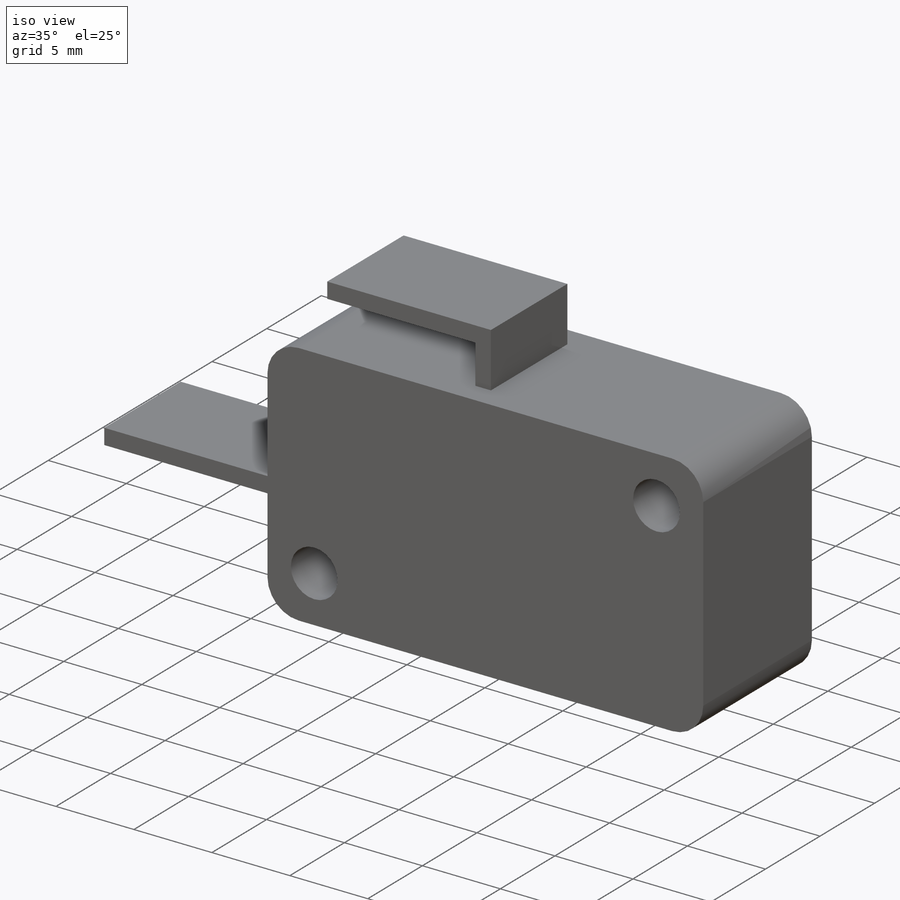
[diagram: iso view]
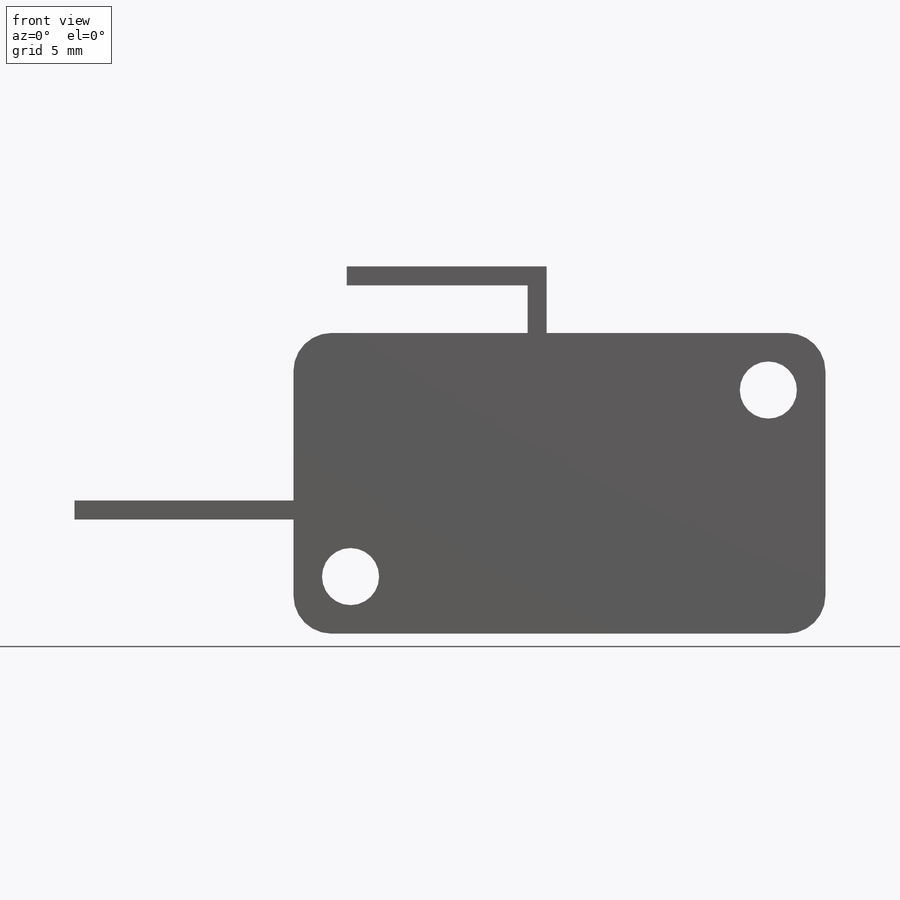
[diagram: front view]
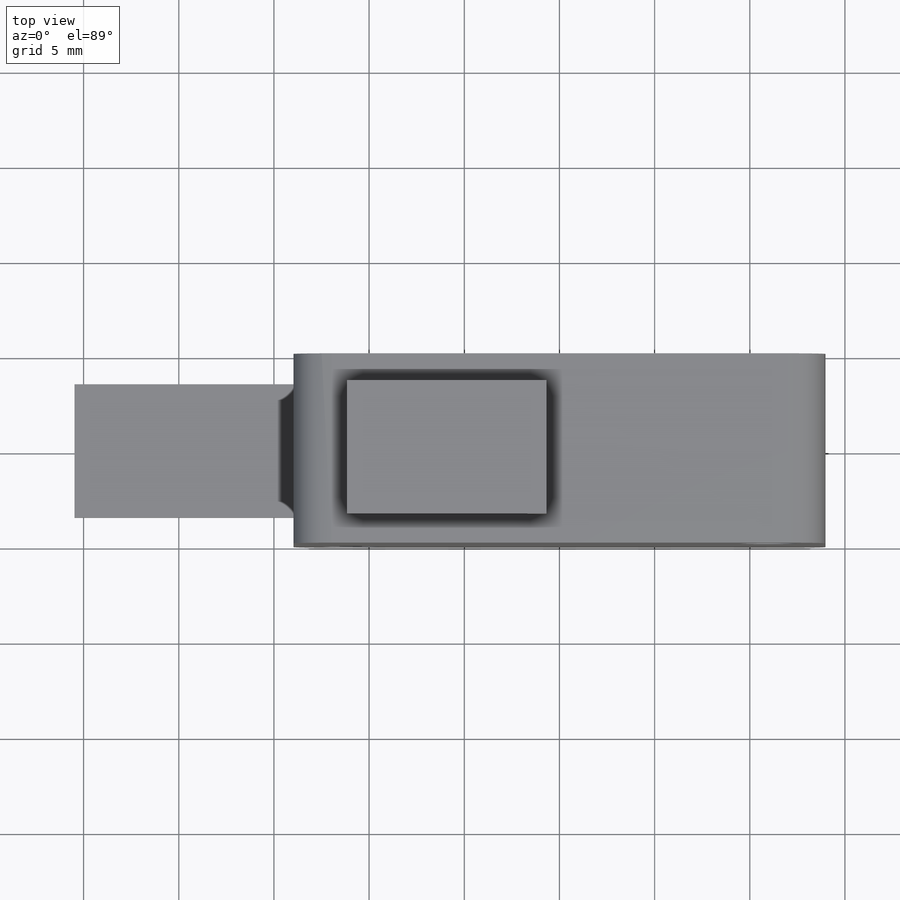
[diagram: top view]
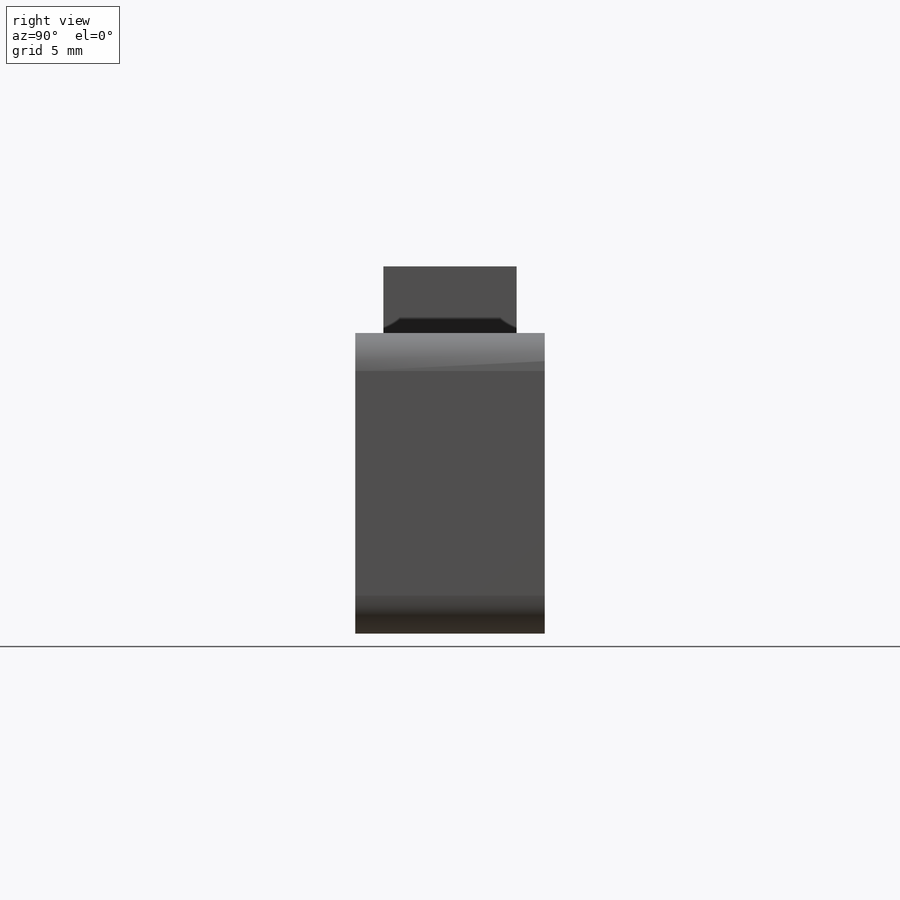
[diagram: right view]
SOLIDWORKS PART (.sldprt)
format: sldprt  version: not decoded by parser v0  size: 230,400 bytes
history: native  units: mm
features: sketch x8, extrude x4, cut_extrude x4, material x1, fillet x1 (+14 scaffold rows collapsed)
feature tree (32):
  scaffold x14  (default folders/planes/origin — collapsed)
  material  "Material <not specified>"
  sketch  "Sketch1"  dims[D1=27.95mm D2=15.8mm]
  extrude  "Extrude1"  Depth=9.95mm
  sketch  "Sketch2"  dims[D1=3.0mm D3=3.0mm D2=3.0mm D4=3.0mm D5=3.0mm D6=3.0mm]
  cut_extrude  "Extrude2"  [1 undecoded]
  fillet  "Fillet1"  Radius=2mm
  sketch  "Sketch3"  dims[D1=7.0mm D2=1.0mm D3=6.0mm D4=1.5mm]
  extrude  "Extrude3"  Depth=11.5mm
  sketch  "Sketch4"  dims[D1=1.0mm D2=7.0mm D3=13.3mm]
  extrude  "Extrude4"  Depth=3.5mm
  sketch  "Sketch5"  dims[D1=1.0mm]
  extrude  "Extrude5"  Depth=9.5mm
  sketch  "Sketch6"  dims[D1=4.0mm D2=2.6mm D3=7.0mm]
  cut_extrude  "Extrude6"  Depth=3mm
  sketch  "Sketch7"  dims[D1=15.5mm D2=1.0mm]
  cut_extrude  "Extrude7"  Depth=3mm
  sketch  "Sketch8"  dims[D1=0.5mm D4=0.5mm D2=0.5mm D3=0.5mm]
  cut_extrude  "Extrude8"  Depth=1mm
decode coverage: 16 of 17 modeling features carry decoded parameters
note: 1 parameter value undecoded
note: suppression state not decoded; provenance and decode notes live in map.json
